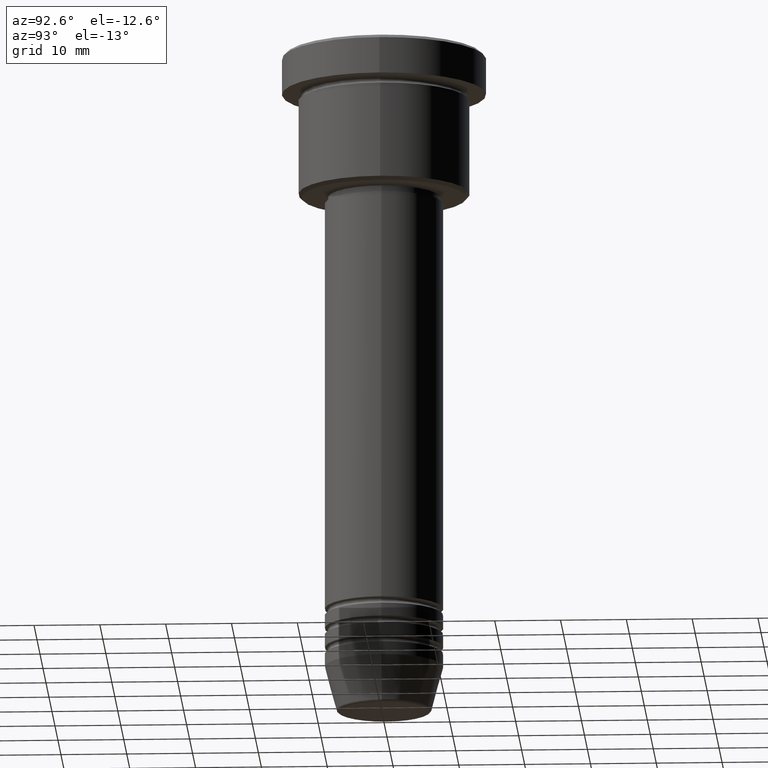
[diagram: clean part render]
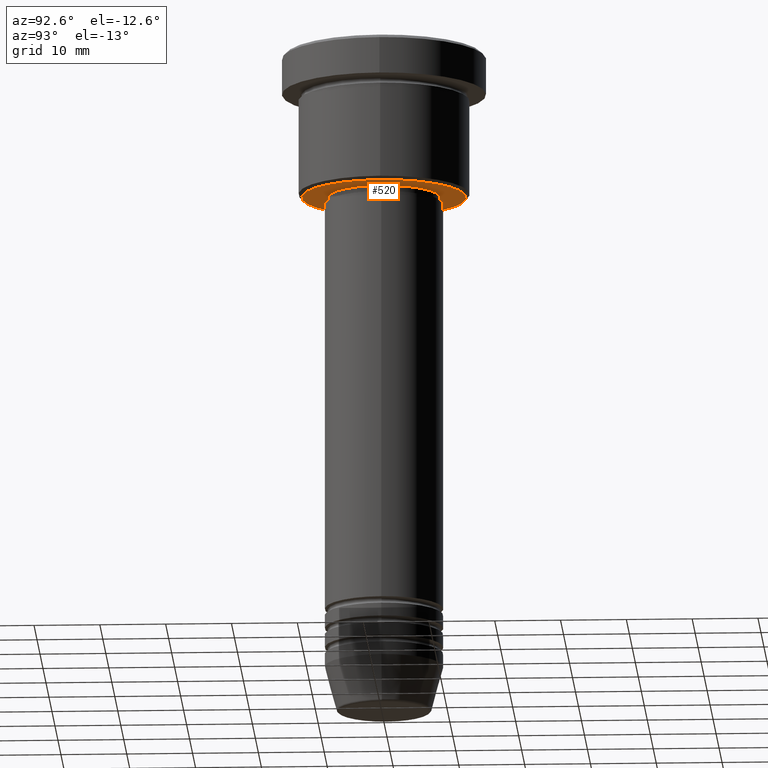
[diagram: same view with one face highlighted and labeled with its STEP entity id]
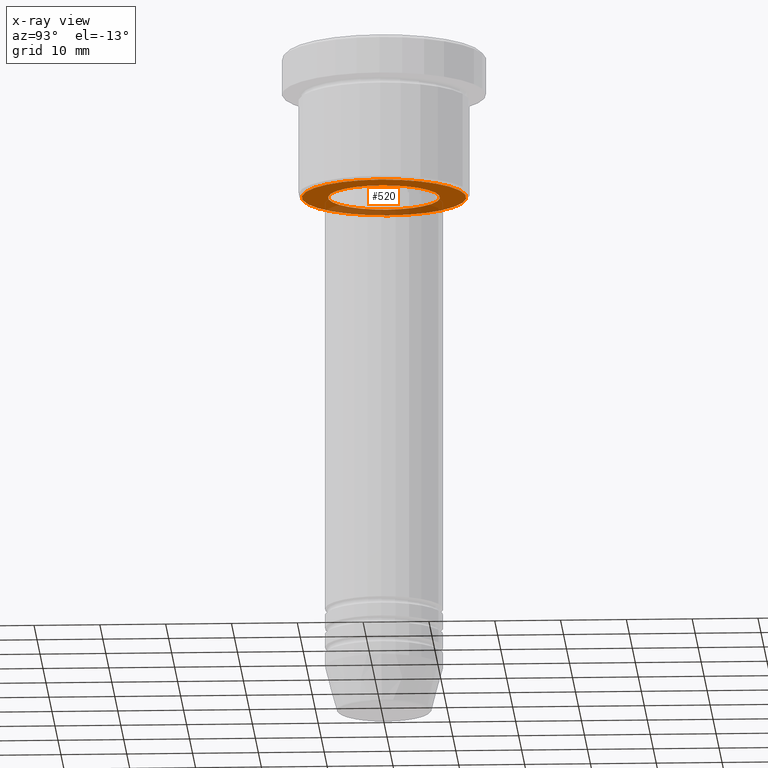
[diagram: x-ray of the same camera — body ghosted, the highlighted face saturated]
A machine part, auxiliary view. The second image highlights one B-rep face of the part: STEP entity #520.
The next image is the same camera in x-ray: the body ghosted, the highlighted face saturated — about 27% of this face is hidden behind the body in this view.
In plain terms, the highlighted planar face has unit normal (0, 0, -1).
Its self-contained STEP definition (entity closure, byte-faithful):
#36 = CIRCLE ( 'NONE', #911, 8.499999999999998224 ) ;
#45 = CARTESIAN_POINT ( 'NONE',  ( -8.499999999999998224, 1.040949779275249943E-15, -22.00000000000001066 ) ) ;
#77 = AXIS2_PLACEMENT_3D ( 'NONE', #336, #1174, #169 ) ;
#119 = DIRECTION ( 'NONE',  ( -0.000000000000000000, -0.000000000000000000, 1.000000000000000000 ) ) ;
#125 = DIRECTION ( 'NONE',  ( 0.000000000000000000, 0.000000000000000000, -1.000000000000000000 ) ) ;
#146 = ORIENTED_EDGE ( 'NONE', *, *, #661, .T. ) ;
#158 = PLANE ( 'NONE',  #615 ) ;
#169 = DIRECTION ( 'NONE',  ( -1.000000000000000000, 0.000000000000000000, 0.000000000000000000 ) ) ;
#210 = DIRECTION ( 'NONE',  ( -0.000000000000000000, -0.000000000000000000, 1.000000000000000000 ) ) ;
#249 = CARTESIAN_POINT ( 'NONE',  ( 0.000000000000000000, 13.00000000000000000, -22.00000000000000711 ) ) ;
#293 = CARTESIAN_POINT ( 'NONE',  ( -12.49999999999998401, 1.561424668912874125E-15, -22.00000000000000711 ) ) ;
#316 = EDGE_CURVE ( 'NONE', #763, #591, #871, .T. ) ;
#320 = CARTESIAN_POINT ( 'NONE',  ( 12.49999999999998401, 0.000000000000000000, -22.00000000000000711 ) ) ;
#336 = CARTESIAN_POINT ( 'NONE',  ( 0.000000000000000000, 0.000000000000000000, -22.00000000000000711 ) ) ;
#368 = CARTESIAN_POINT ( 'NONE',  ( 0.000000000000000000, 0.000000000000000000, -22.00000000000001066 ) ) ;
#411 = CIRCLE ( 'NONE', #1003, 8.499999999999998224 ) ;
#498 = CARTESIAN_POINT ( 'NONE',  ( 0.000000000000000000, 0.000000000000000000, -22.00000000000000711 ) ) ;
#512 = ORIENTED_EDGE ( 'NONE', *, *, #316, .T. ) ;
#514 = EDGE_CURVE ( 'NONE', #591, #763, #1178, .T. ) ;
#517 = EDGE_LOOP ( 'NONE', ( #592, #146 ) ) ;
#520 = ADVANCED_FACE ( 'NONE', ( #885, #968 ), #158, .T. ) ;
#537 = DIRECTION ( 'NONE',  ( 1.000000000000000000, 0.000000000000000000, 0.000000000000000000 ) ) ;
#565 = DIRECTION ( 'NONE',  ( 1.000000000000000000, 0.000000000000000000, 0.000000000000000000 ) ) ;
#591 = VERTEX_POINT ( 'NONE', #293 ) ;
#592 = ORIENTED_EDGE ( 'NONE', *, *, #640, .T. ) ;
#602 = DIRECTION ( 'NONE',  ( 0.000000000000000000, 0.000000000000000000, -1.000000000000000000 ) ) ;
#606 = CARTESIAN_POINT ( 'NONE',  ( 8.499999999999998224, 0.000000000000000000, -22.00000000000001066 ) ) ;
#615 = AXIS2_PLACEMENT_3D ( 'NONE', #249, #602, #974 ) ;
#640 = EDGE_CURVE ( 'NONE', #971, #1134, #36, .T. ) ;
#661 = EDGE_CURVE ( 'NONE', #1134, #971, #411, .T. ) ;
#693 = DIRECTION ( 'NONE',  ( -1.000000000000000000, 0.000000000000000000, 0.000000000000000000 ) ) ;
#763 = VERTEX_POINT ( 'NONE', #320 ) ;
#772 = EDGE_LOOP ( 'NONE', ( #512, #802 ) ) ;
#802 = ORIENTED_EDGE ( 'NONE', *, *, #514, .T. ) ;
#871 = CIRCLE ( 'NONE', #984, 12.49999999999998401 ) ;
#885 = FACE_OUTER_BOUND ( 'NONE', #772, .T. ) ;
#911 = AXIS2_PLACEMENT_3D ( 'NONE', #368, #119, #537 ) ;
#968 = FACE_BOUND ( 'NONE', #517, .T. ) ;
#971 = VERTEX_POINT ( 'NONE', #606 ) ;
#974 = DIRECTION ( 'NONE',  ( -1.000000000000000000, 0.000000000000000000, -0.000000000000000000 ) ) ;
#984 = AXIS2_PLACEMENT_3D ( 'NONE', #498, #125, #693 ) ;
#1003 = AXIS2_PLACEMENT_3D ( 'NONE', #1118, #210, #565 ) ;
#1118 = CARTESIAN_POINT ( 'NONE',  ( 0.000000000000000000, 0.000000000000000000, -22.00000000000001066 ) ) ;
#1134 = VERTEX_POINT ( 'NONE', #45 ) ;
#1174 = DIRECTION ( 'NONE',  ( 0.000000000000000000, 0.000000000000000000, -1.000000000000000000 ) ) ;
#1178 = CIRCLE ( 'NONE', #77, 12.49999999999998401 ) ;